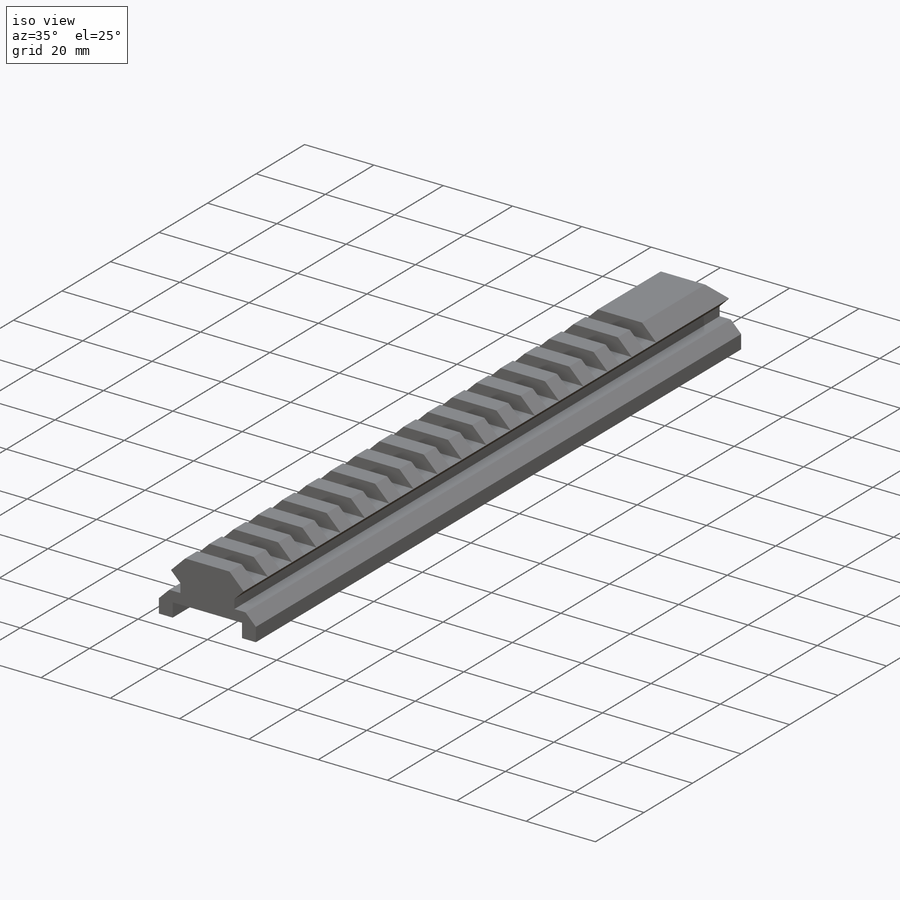
[diagram: iso view]
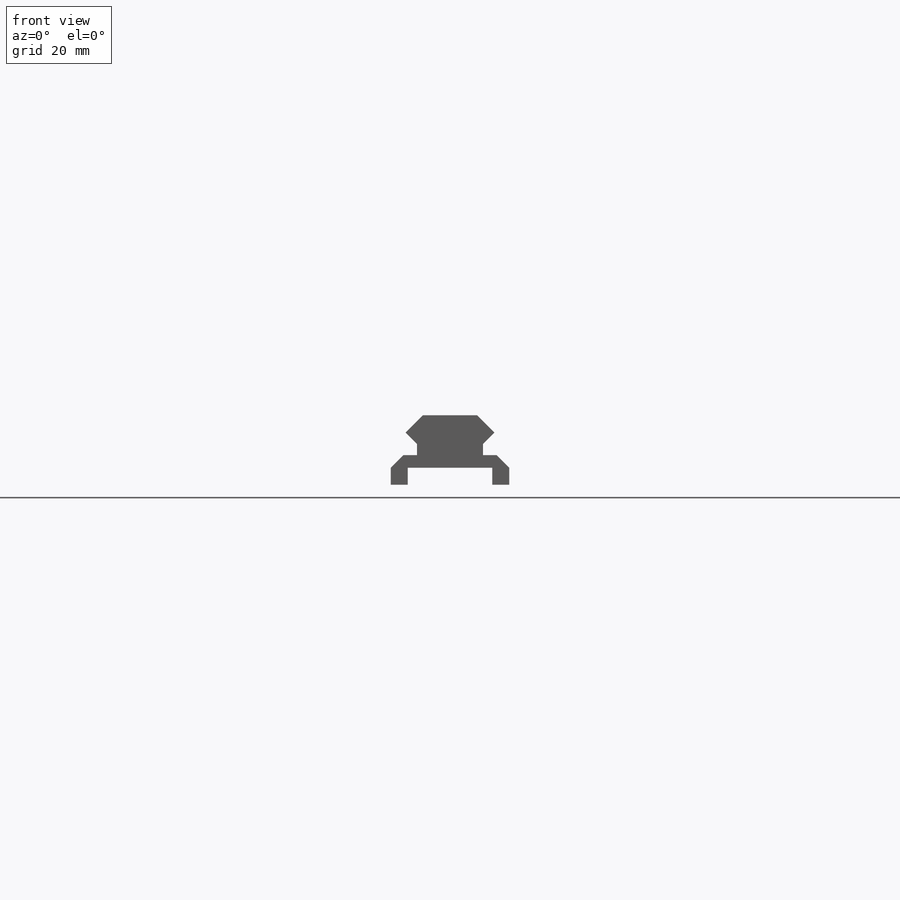
[diagram: front view]
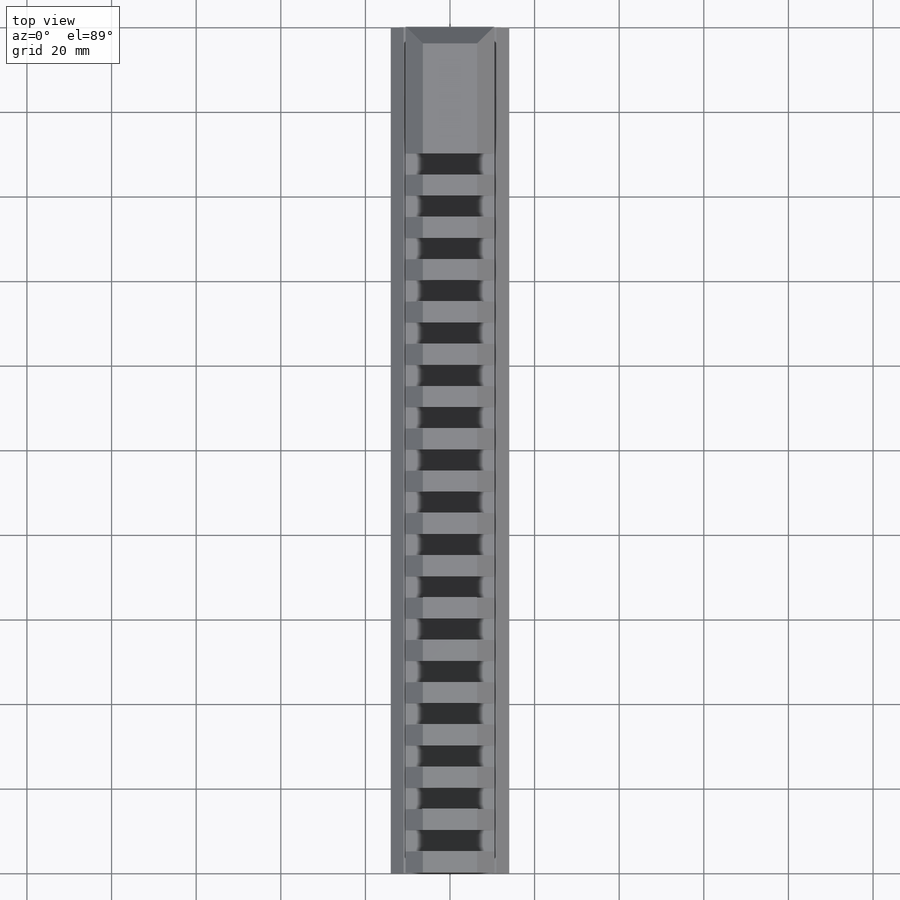
[diagram: top view]
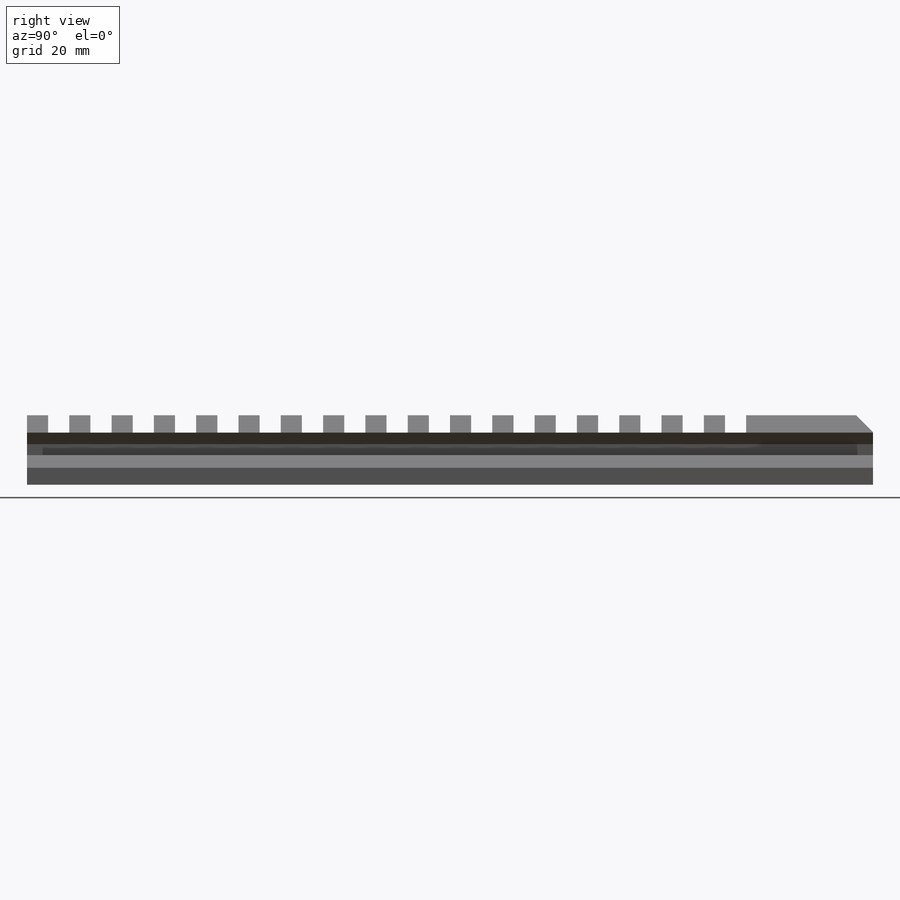
[diagram: right view]
SOLIDWORKS PART (.sldprt)
format: sldprt  version: not decoded by parser v0  size: 282,112 bytes
history: native  units: mm
features: sketch x3, extrude x2, chamfer x2, material x1, cut_extrude x1, pattern_linear x1 (+11 scaffold rows collapsed)
feature tree (21):
  scaffold x11  (default folders/planes/origin — collapsed)
  material  "Material <not specified>"
  sketch  "Sketch1"  dims[D1=15.6mm D2=4.0mm]
  extrude  "Boss-Extrude1"  Depth=200mm
  chamfer  "Chamfer1"  Distance=3mm Angle=45deg
  sketch  "Sketch2"  dims[D1=10.0mm D2=~3.257725mm]
  cut_extrude  "Cut-Extrude1"  Depth=200mm
  pattern_linear  "LPattern1"  Count1=20 Count2=1 Spacing1=10mm Spacing2=10mm
  sketch  "Sketch4"
  extrude  "Boss-Extrude2"  [1 undecoded]
  chamfer  "Chamfer2"  Distance=4mm Angle=45deg
decode coverage: 7 of 9 modeling features carry decoded parameters
note: ~ marks probable driven/reference dimensions
note: 1 parameter value undecoded
note: suppression state not decoded; provenance and decode notes live in map.json
